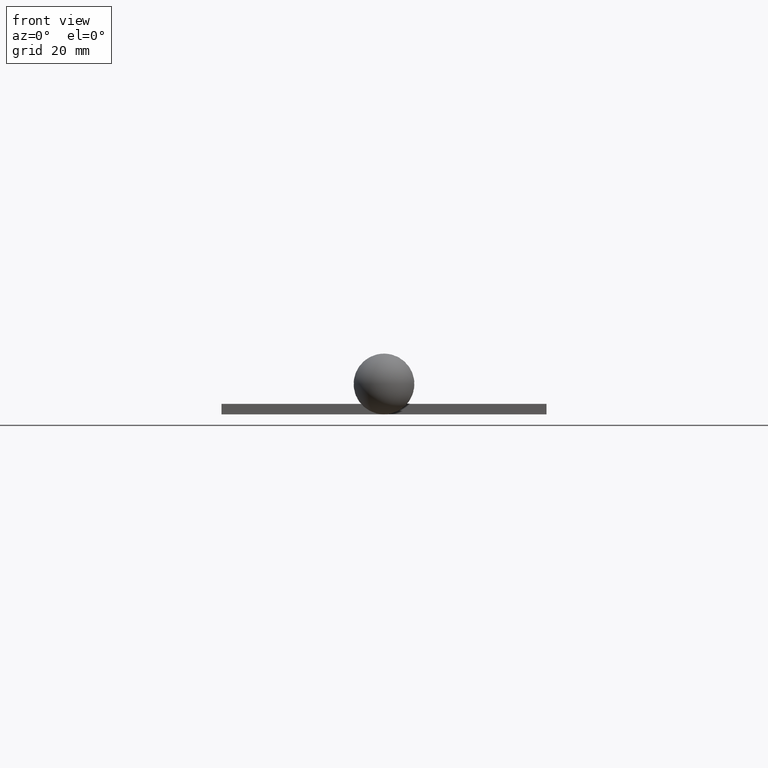
[diagram: clean part render]
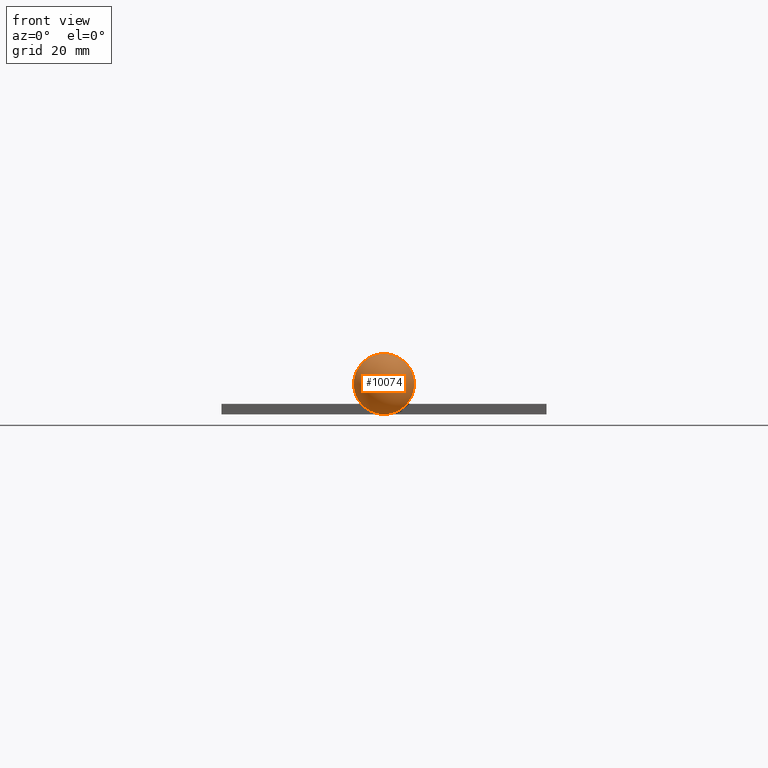
[diagram: same view with one face highlighted and labeled with its STEP entity id]
A machine part, front view. The second image highlights one B-rep face of the part: STEP entity #10074.
In plain terms, the highlighted spherical surface has radius 11.8472 mm.
Its self-contained STEP definition (entity closure, byte-faithful):
#124 = DIRECTION ( 'NONE',  ( -0.000000000000000000, -1.000000000000000000, -0.000000000000000000 ) ) ;
#482 = DIRECTION ( 'NONE',  ( 1.000000000000000000, 0.000000000000000000, 0.000000000000000000 ) ) ;
#2009 = SPHERICAL_SURFACE ( 'NONE', #7166, 11.84722222222222499 ) ;
#2089 = DIRECTION ( 'NONE',  ( 0.000000000000000000, 0.000000000000000000, -1.000000000000000000 ) ) ;
#2367 = CARTESIAN_POINT ( 'NONE',  ( 0.000000000000000000, 3.652777777777776347, 0.000000000000000000 ) ) ;
#2432 = VERTEX_POINT ( 'NONE', #10707 ) ;
#2711 = EDGE_LOOP ( 'NONE', ( #12636 ) ) ;
#4727 = FACE_OUTER_BOUND ( 'NONE', #2711, .T. ) ;
#5368 = DIRECTION ( 'NONE',  ( 0.000000000000000000, 0.000000000000000000, 1.000000000000000000 ) ) ;
#5855 = AXIS2_PLACEMENT_3D ( 'NONE', #8091, #124, #2089 ) ;
#7166 = AXIS2_PLACEMENT_3D ( 'NONE', #2367, #5368, #482 ) ;
#8091 = CARTESIAN_POINT ( 'NONE',  ( 0.000000000000000000, 6.500000000000002665, 0.000000000000000000 ) ) ;
#9898 = EDGE_CURVE ( 'NONE', #2432, #2432, #10419, .T. ) ;
#10074 = ADVANCED_FACE ( 'NONE', ( #4727 ), #2009, .T. ) ;
#10419 = CIRCLE ( 'NONE', #5855, 11.50000000000000178 ) ;
#10707 = CARTESIAN_POINT ( 'NONE',  ( 0.000000000000000000, 6.500000000000002665, -11.50000000000000178 ) ) ;
#12636 = ORIENTED_EDGE ( 'NONE', *, *, #9898, .F. ) ;